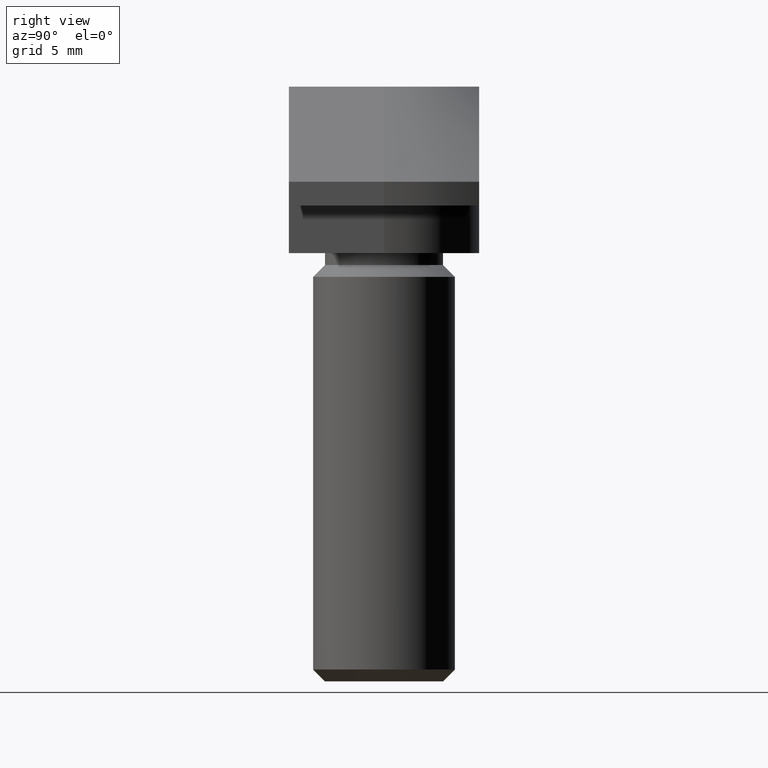
[diagram: clean part render]
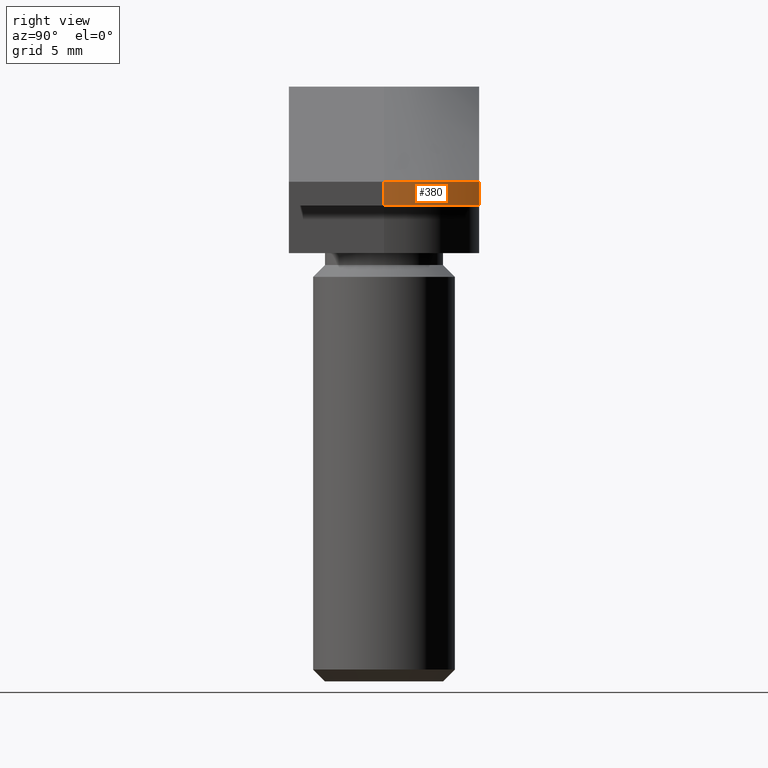
[diagram: same view with one face highlighted and labeled with its STEP entity id]
A machine part, right view. The second image highlights one B-rep face of the part: STEP entity #380.
In plain terms, the highlighted cylindrical surface (partial cylindrical patch) has radius 8 mm, axis along (0, 0, 1).
Its self-contained STEP definition (entity closure, byte-faithful):
#36=LINE('',#619,#70);
#37=LINE('',#620,#71);
#70=VECTOR('',#505,1.);
#71=VECTOR('',#506,1.);
#102=CYLINDRICAL_SURFACE('',#418,8.);
#122=FACE_OUTER_BOUND('',#150,.T.);
#150=EDGE_LOOP('',(#309,#310,#311,#312));
#170=CIRCLE('',#414,8.);
#172=CIRCLE('',#417,8.);
#195=VERTEX_POINT('',#600);
#196=VERTEX_POINT('',#602);
#199=VERTEX_POINT('',#609);
#201=VERTEX_POINT('',#615);
#236=EDGE_CURVE('',#195,#196,#170,.T.);
#242=EDGE_CURVE('',#201,#199,#172,.T.);
#243=EDGE_CURVE('',#199,#195,#36,.T.);
#244=EDGE_CURVE('',#201,#196,#37,.T.);
#309=ORIENTED_EDGE('',*,*,#243,.F.);
#310=ORIENTED_EDGE('',*,*,#242,.F.);
#311=ORIENTED_EDGE('',*,*,#244,.T.);
#312=ORIENTED_EDGE('',*,*,#236,.F.);
#380=ADVANCED_FACE('',(#122),#102,.T.);
#414=AXIS2_PLACEMENT_3D('',#603,#492,#493);
#417=AXIS2_PLACEMENT_3D('',#617,#501,#502);
#418=AXIS2_PLACEMENT_3D('',#618,#503,#504);
#492=DIRECTION('center_axis',(0.,0.,-1.));
#493=DIRECTION('ref_axis',(1.,0.,0.));
#501=DIRECTION('center_axis',(0.,0.,1.));
#502=DIRECTION('ref_axis',(1.,2.77555756156289E-16,0.));
#503=DIRECTION('center_axis',(0.,0.,1.));
#504=DIRECTION('ref_axis',(1.,0.,0.));
#505=DIRECTION('',(0.,0.,-1.));
#506=DIRECTION('',(0.,0.,-1.));
#600=CARTESIAN_POINT('',(6.92820323027551,4.,-5.));
#602=CARTESIAN_POINT('',(8.,0.,-5.));
#603=CARTESIAN_POINT('Origin',(0.,0.,-5.));
#609=CARTESIAN_POINT('',(6.92820323027551,4.,-4.));
#615=CARTESIAN_POINT('',(8.,0.,-4.));
#617=CARTESIAN_POINT('Origin',(-2.22044604925031E-15,-2.22044604925031E-15,
-4.));
#618=CARTESIAN_POINT('Origin',(0.,0.,-4.5));
#619=CARTESIAN_POINT('',(6.92820323027551,4.,-4.5));
#620=CARTESIAN_POINT('',(8.,0.,-4.5));